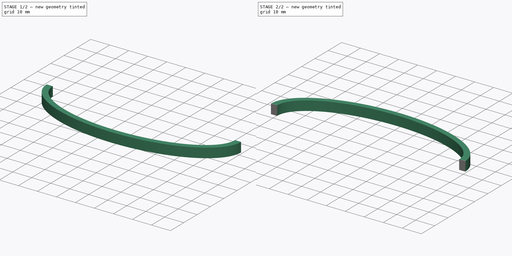
[diagram: build sequence overview — one tinted view per stage of 2, left to right]
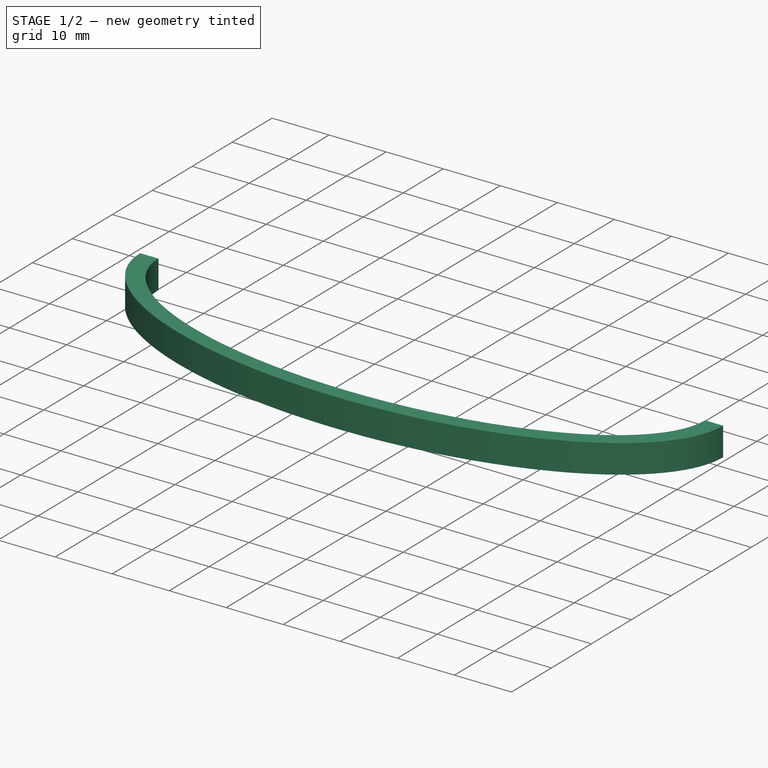
[diagram: stage 1 of 2 — iso view after this stage's code; geometry added in this stage tinted green]
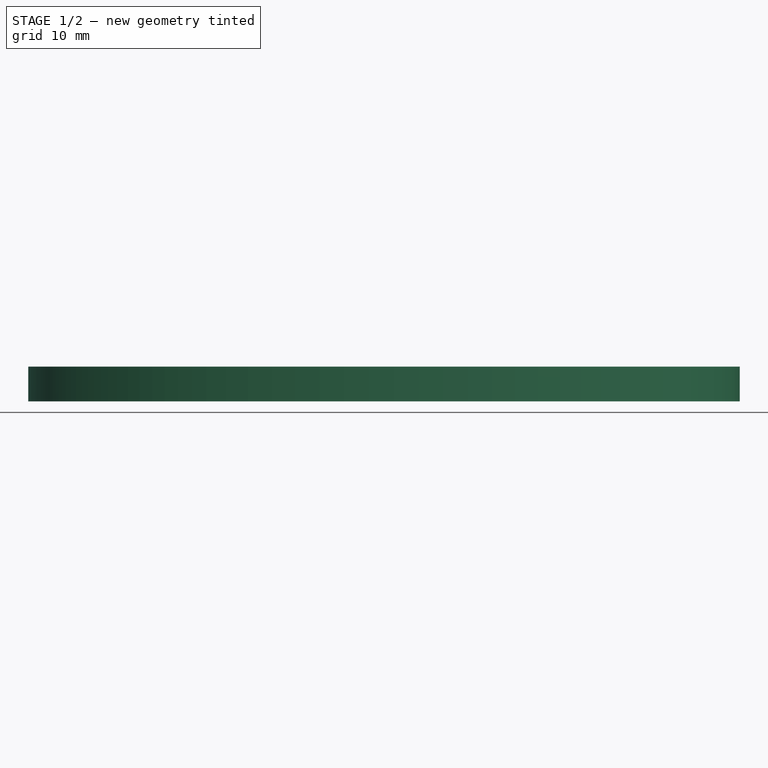
[diagram: stage 1 of 2 — front view after this stage's code; geometry added in this stage tinted green]
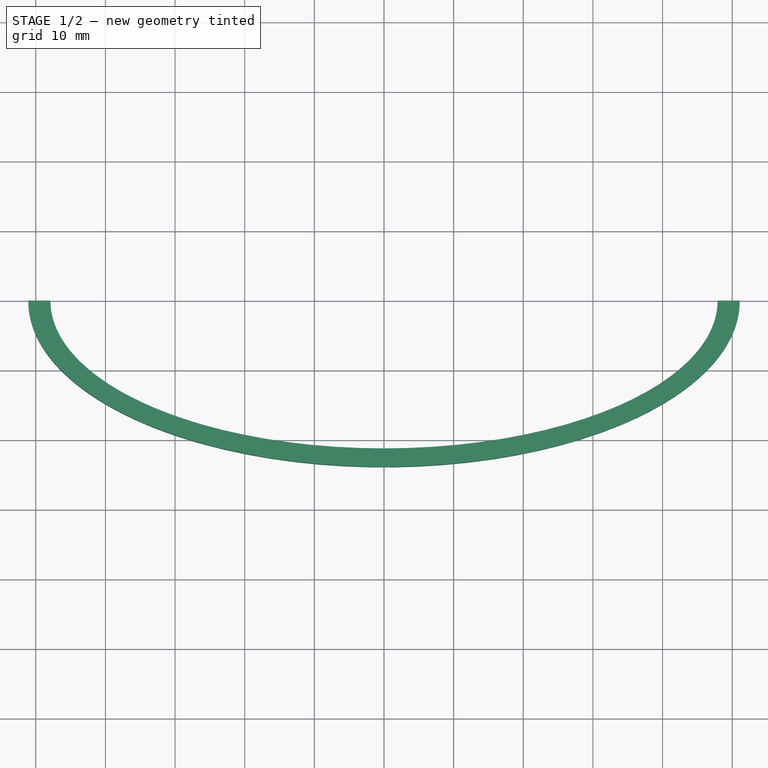
[diagram: stage 1 of 2 — top view after this stage's code; geometry added in this stage tinted green]
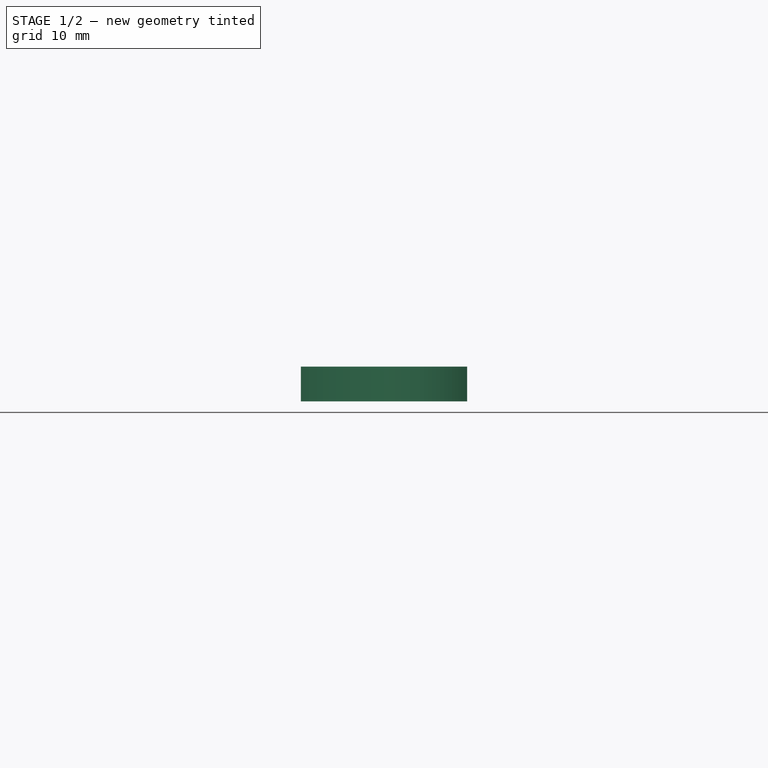
[diagram: stage 1 of 2 — right view after this stage's code; geometry added in this stage tinted green]
FCSTD DOCUMENT  (FreeCAD 0.20R29177 +426 (Git))
Label: project_9
License: All rights reserved
LicenseURL: https://en.wikipedia.org/wiki/All_rights_reserved
objects: Sketcher::SketchObject×2, Surface::Filling×2, Part::RuledSurface×2, Part::Extrusion×1, Part::Mirroring×1, Part::Compound×1, Part::Feature×1
note: 10 computed .brp shape members not serialized (recipe doc carries the construction recipe); baked Part::Feature solids carry a one-line shape summary decoded from their .brp

FEATURE [Sketcher::SketchObject] Sketch
  FullyConstrained = false
  sketch-geometry (12):
    g0: ArcOfEllipse CenterX=0 CenterY=0 CenterZ=0 NormalX=0 NormalY=0 NormalZ=1 MajorRadius=51.075 MinorRadius=23.89 AngleXU=-3.14159 StartAngle=0 EndAngle=3.14159
    g1: LineSegment StartX=-51.075 StartY=0 StartZ=0 EndX=51.075 EndY=0 EndZ=0
    g2: LineSegment StartX=0 StartY=-23.89 StartZ=0 EndX=0 EndY=23.89 EndZ=0
    g3: GeomPoint X=-45.1434 Y=0 Z=0
    g4: GeomPoint X=45.1434 Y=0 Z=0
    g5: ArcOfEllipse CenterX=0 CenterY=0 CenterZ=0 NormalX=0 NormalY=0 NormalZ=1 MajorRadius=47.8986 MinorRadius=21.2264 AngleXU=-3.14159 StartAngle=0 EndAngle=3.14159
    g6: LineSegment StartX=-47.8986 StartY=0 StartZ=0 EndX=47.8986 EndY=0 EndZ=0
    g7: LineSegment StartX=0 StartY=-21.2264 StartZ=0 EndX=0 EndY=21.2264 EndZ=0
    g8: GeomPoint X=-42.9385 Y=0 Z=0
    g9: GeomPoint X=42.9385 Y=0 Z=0
    g10: LineSegment StartX=-51.075 StartY=0 StartZ=0 EndX=-47.8986 EndY=0 EndZ=0
    g11: LineSegment StartX=47.8986 StartY=-2.6e-15 StartZ=0 EndX=51.075 EndY=-2.9e-15 EndZ=0
  constraints (16):
    c: InternalAlignment(g1-g4 -> g0) x4
    c: Coincident(g0,g-1)
    c: PointOnObject(g0,g-1)
    c: PointOnObject(g0,g-1)
    c: PointOnObject(g2,g-2)
    c: InternalAlignment(g6-g9 -> g5) x4
    c: Coincident(g5,g0)
    c: PointOnObject(g5,g1)
    c: PointOnObject(g5,g1)
    c: PointOnObject(g8,g1)
    c: Coincident(g10,g0)
    c: Coincident(g10,g5)
    c: Coincident(g11,g5)
    c: Coincident(g11,g0)
    c: DistanceX(g1,g1) = 102.15
    c: DistanceY(g2,g2) = 47.78
FEATURE [Sketcher::SketchObject] Sketch001
  ExternalGeometry = -> [Sketch]
  FullyConstrained = true
  Placement = pos=(0,0,0) rot=(1,0,0;1.5708rad)
  sketch-geometry (2):
    g0: ArcOfCircle CenterX=-6.2e-15 CenterY=-113.036 CenterZ=0 NormalX=0 NormalY=0 NormalZ=1 AngleXU=0 Radius=122.765 StartAngle=1.16999 EndAngle=1.97161
    g1: ArcOfCircle CenterX=-1.23e-14 CenterY=-103.036 CenterZ=0 NormalX=0 NormalY=0 NormalZ=1 AngleXU=0 Radius=115 StartAngle=1.11059 EndAngle=2.031
  constraints (6):
    c: Coincident(g0,g-3)
    c: Coincident(g0,g-4)
    c: Coincident(g1,g-3)
    c: Coincident(g1,g-4)
    c: DistanceY(g0,g1) = 10
    c: Radius(g1) = 115
FEATURE [Part::Extrusion] Extrude
  Base = -> Sketch
  Dir = (0,0,1)
  DirMode = 2
  FaceMakerClass = Part::FaceMakerBullseye
  LengthFwd = 5
  LengthRev = 0
  Reversed = true
  Solid = true
  Symmetric = false
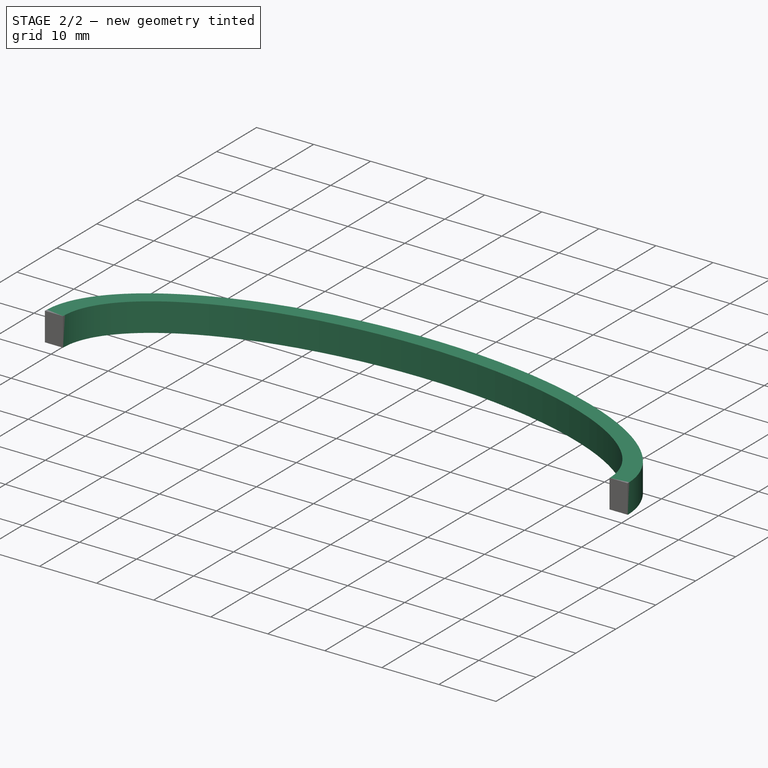
[diagram: stage 2 of 2 — iso view after this stage's code; geometry added in this stage tinted green]
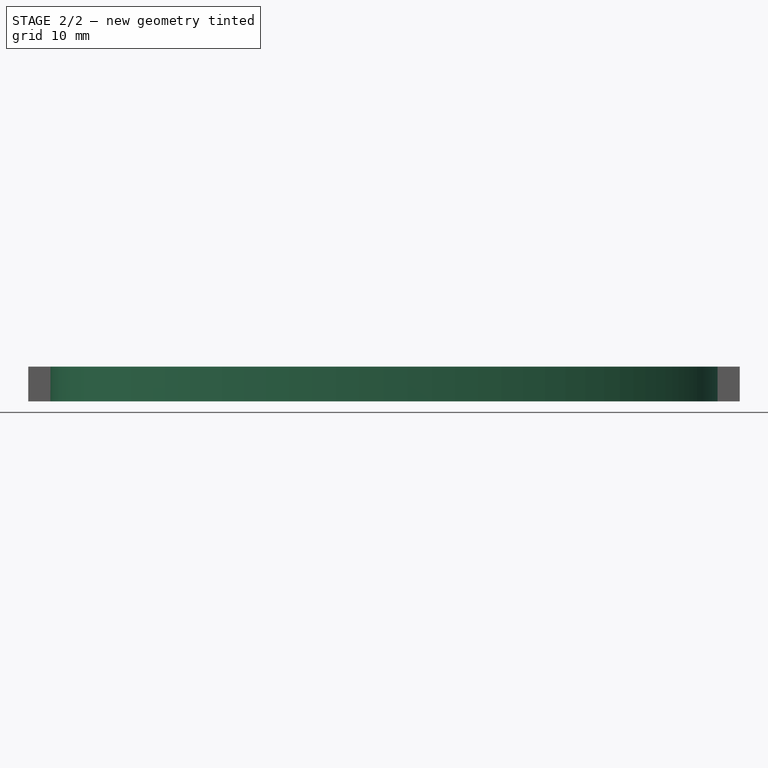
[diagram: stage 2 of 2 — front view after this stage's code; geometry added in this stage tinted green]
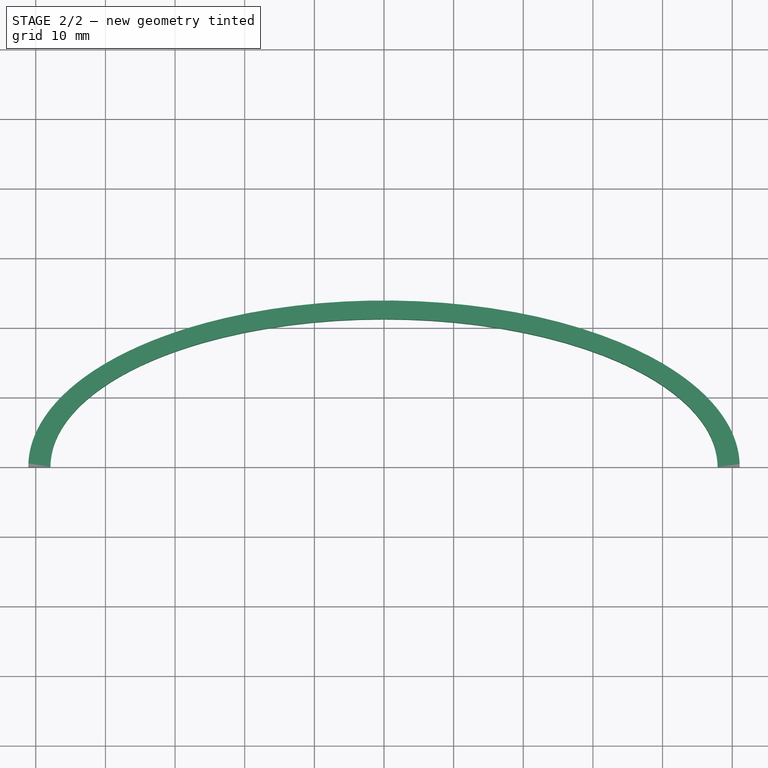
[diagram: stage 2 of 2 — top view after this stage's code; geometry added in this stage tinted green]
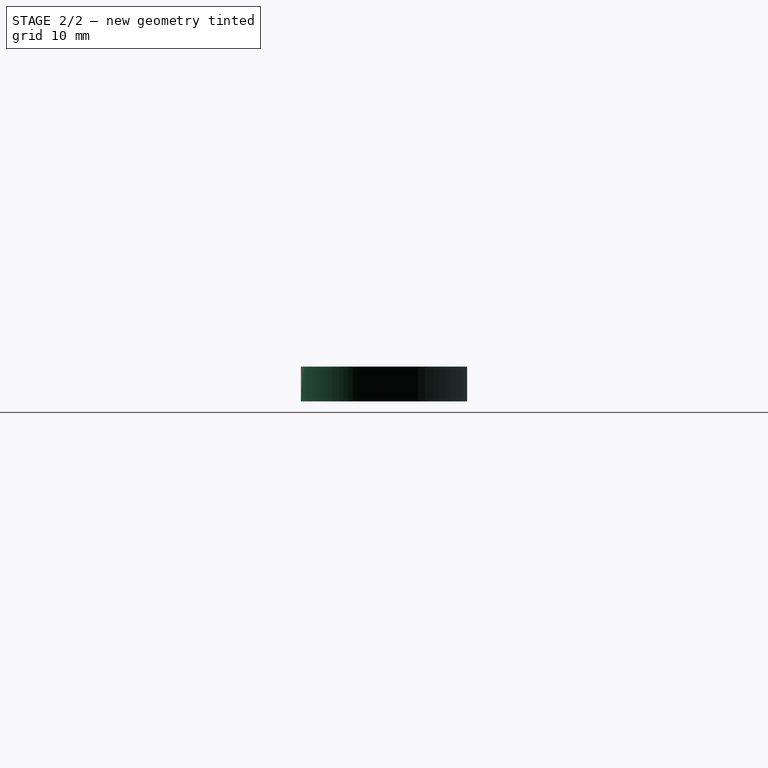
[diagram: stage 2 of 2 — right view after this stage's code; geometry added in this stage tinted green]
FEATURE [Part::Mirroring] Part__Mirroring  label="Extrude (Mirror #1)"
  Base = (0,0,0)
  Normal = (0,1,0)
  Source = -> Extrude
FEATURE [Surface::Filling] Surface
  Anisotropy = false
  BoundaryEdges = -> [Extrude,Part__Mirroring]
  BoundaryOrder = [0,0]
  Degree = 3
  Iterations = 2
  MaximumDegree = 8
  MaximumSegments = 9
  PointsOnCurve = 15
  TolAngular = 0.01
  TolCurvature = 0.1
  Tolerance2d = 1e-05
  Tolerance3d = 0.0001
  UnboundEdges = -> [Sketch001]
  UnboundOrder = [0]
FEATURE [Surface::Filling] Surface001
  Anisotropy = false
  BoundaryEdges = -> [Extrude,Part__Mirroring]
  BoundaryOrder = [0,0]
  Degree = 3
  Iterations = 2
  MaximumDegree = 8
  MaximumSegments = 9
  PointsOnCurve = 15
  TolAngular = 0.01
  TolCurvature = 0.1
  Tolerance2d = 1e-05
  Tolerance3d = 0.0001
  UnboundEdges = -> [Sketch001]
  UnboundOrder = [0]
FEATURE [Part::RuledSurface] Ruled_Surface
  Curve1 = -> Surface [Edge2]
  Curve2 = -> Surface001 [Edge2]
  Orientation = 0
FEATURE [Part::RuledSurface] Ruled_Surface001
  Curve1 = -> Surface001 [Edge1]
  Curve2 = -> Surface [Edge1]
  Orientation = 0
FEATURE [Part::Compound] Compound
  Links = -> [Ruled_Surface,Ruled_Surface001,Surface,Surface001]
FEATURE [Part::Feature] Compound_solid  label="Compound (Solid)"
  shape: bbox 112.4 x 53.53 x 30.03 mm, 4 faces (baked)
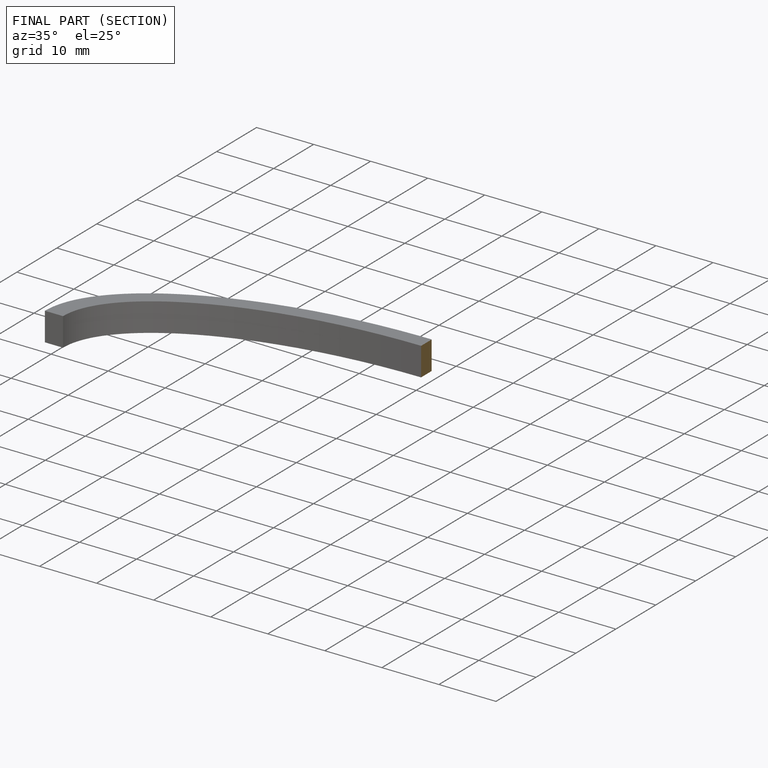
[diagram: finished part — half-section view (interior)]
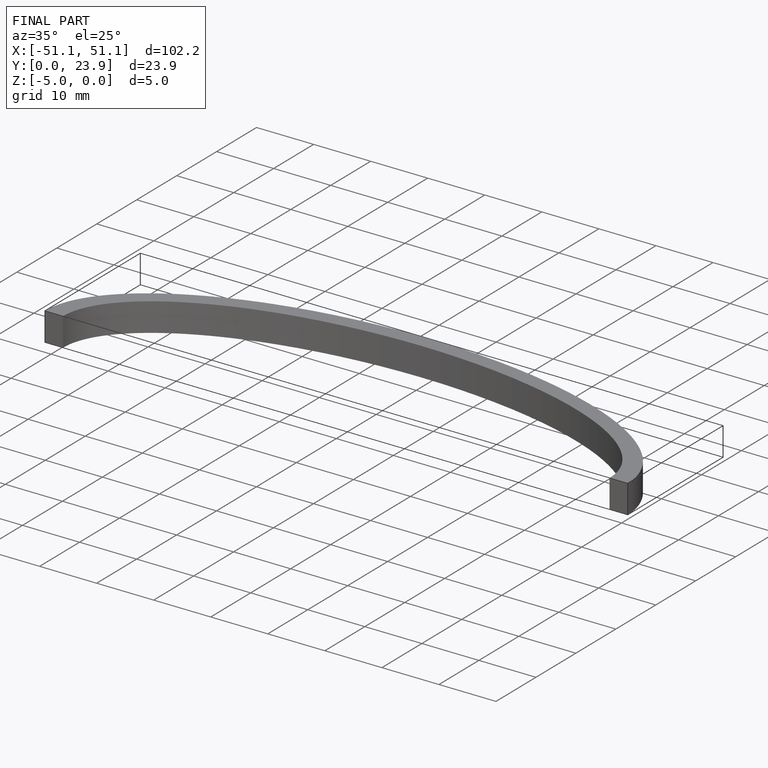
[diagram: finished part — iso view with bounding-box wireframe]
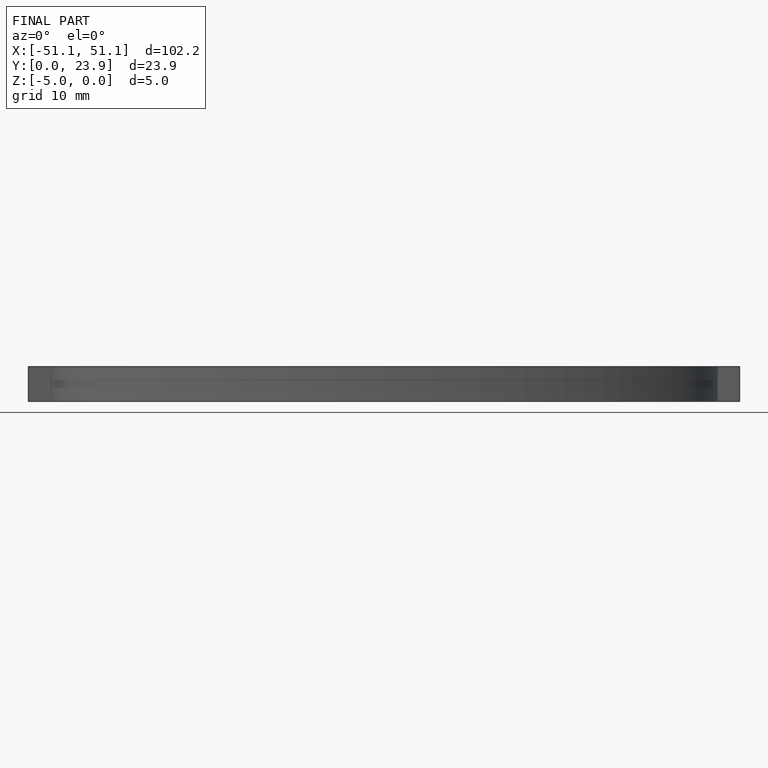
[diagram: finished part — front view with bounding-box wireframe]
